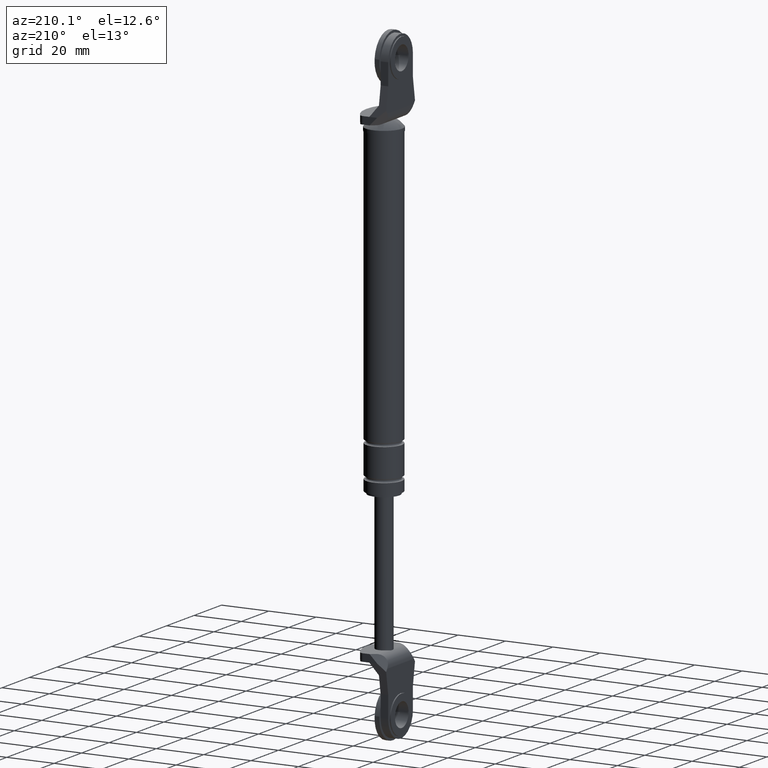
[diagram: clean part render]
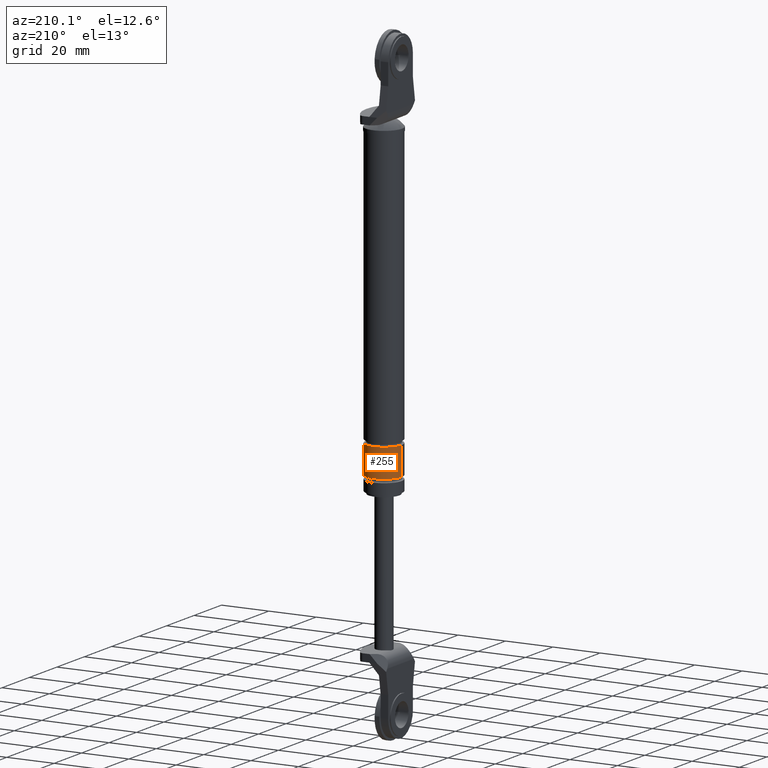
[diagram: same view with one face highlighted and labeled with its STEP entity id]
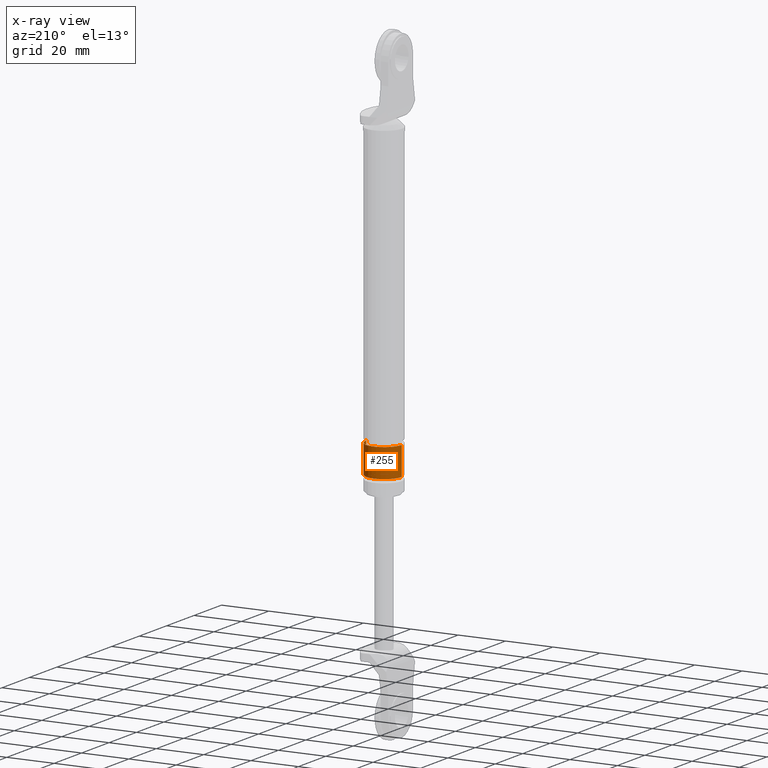
[diagram: x-ray of the same camera — body ghosted, the highlighted face saturated]
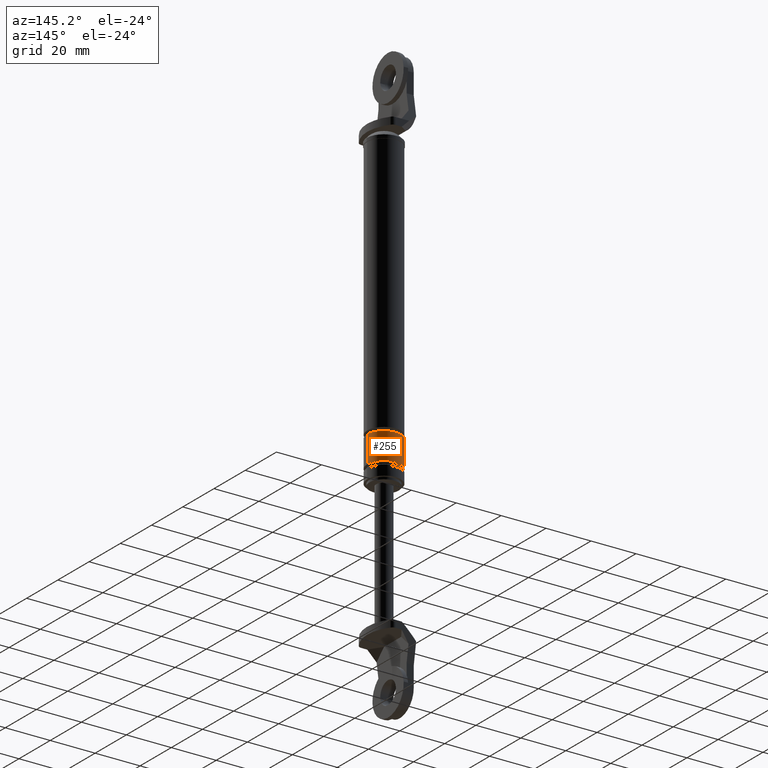
[diagram: same view with one face highlighted and labeled with its STEP entity id]
A machine part, auxiliary view. The second image highlights one B-rep face of the part: STEP entity #255.
The next image is the same camera in x-ray: the body ghosted, the highlighted face saturated — about 0% of this face is hidden behind the body in this view.
A second angle (auxiliary view) of the same face is appended — the face is thin or edge-on in the first view.
In plain terms, the highlighted cylindrical surface (edge-blend (fillet) strip) has radius 7.5 mm, axis along (0, 0, -1).
Its self-contained STEP definition (entity closure, byte-faithful):
#255=ADVANCED_FACE('',(#807),#806,.T.);
#806=CYLINDRICAL_SURFACE('',#1410,7.50000000000E+000);
#807=FACE_OUTER_BOUND('',#1411,.T.);
#1407=CARTESIAN_POINT('',(7.00000000000E+000,0.00000000000E+000,1.02800000000E+003));
#1408=DIRECTION('',(-0.00000000000E+000,-0.00000000000E+000,1.00000000000E+000));
#1409=DIRECTION('',(1.00000000000E+000,-0.00000000000E+000,-0.00000000000E+000));
#1410=AXIS2_PLACEMENT_3D('',#1407,#1408,#1409);
#1411=EDGE_LOOP('',(#1848,#1849,#1850,#1851));
#1848=ORIENTED_EDGE('',*,*,#2096,.T.);
#1849=ORIENTED_EDGE('',*,*,#2126,.T.);
#1850=ORIENTED_EDGE('',*,*,#2109,.F.);
#1851=ORIENTED_EDGE('',*,*,#2127,.F.);
#2096=EDGE_CURVE('',#2870,#2871,#2872,.T.);
#2109=EDGE_CURVE('',#2955,#2954,#2962,.T.);
#2126=EDGE_CURVE('',#2871,#2954,#3068,.T.);
#2127=EDGE_CURVE('',#2870,#2955,#3074,.T.);
#2870=VERTEX_POINT('',#3958);
#2871=VERTEX_POINT('',#3959);
#2872=CIRCLE('',#3963,7.50000000000E+000);
#2954=VERTEX_POINT('',#4018);
#2955=VERTEX_POINT('',#4019);
#2962=CIRCLE('',#4027,7.50000000000E+000);
#3068=(BOUNDED_CURVE() B_SPLINE_CURVE(1,(#4080,#4081),.UNSPECIFIED.,.F.,.F.) B_SPLINE_CURVE_WITH_KNOTS((2,2),(8.33333343261E-002,9.16666667006E-001),.UNSPECIFIED.) CURVE() GEOMETRIC_REPRESENTATION_ITEM() RATIONAL_B_SPLINE_CURVE((1.00000000000E+000,1.00000000000E+000)) REPRESENTATION_ITEM('') );
#3074=(BOUNDED_CURVE() B_SPLINE_CURVE(1,(#4082,#4083),.UNSPECIFIED.,.F.,.F.) B_SPLINE_CURVE_WITH_KNOTS((2,2),(8.33333333333E-002,9.16666666667E-001),.UNSPECIFIED.) CURVE() GEOMETRIC_REPRESENTATION_ITEM() RATIONAL_B_SPLINE_CURVE((7.50000000000E-001,7.50000000000E-001)) REPRESENTATION_ITEM('') );
#3958=CARTESIAN_POINT('',(-5.00000000000E-001,5.92118946467E-016,1.45000000000E+002));
#3959=CARTESIAN_POINT('',(1.45000000000E+001,0.00000000000E+000,1.45000000000E+002));
#3960=CARTESIAN_POINT('',(7.00000000000E+000,0.00000000000E+000,1.45000000000E+002));
#3961=DIRECTION('',(0.00000000000E+000,0.00000000000E+000,1.00000000000E+000));
#3962=DIRECTION('',(1.00000000000E+000,-1.22460635382E-016,0.00000000000E+000));
#3963=AXIS2_PLACEMENT_3D('',#3960,#3961,#3962);
#4018=CARTESIAN_POINT('',(1.45000000000E+001,0.00000000000E+000,1.57000000000E+002));
#4019=CARTESIAN_POINT('',(-5.00000000000E-001,5.92118946467E-016,1.57000000000E+002));
#4024=CARTESIAN_POINT('',(7.00000000000E+000,0.00000000000E+000,1.57000000000E+002));
#4025=DIRECTION('',(0.00000000000E+000,0.00000000000E+000,1.00000000000E+000));
#4026=DIRECTION('',(1.00000000000E+000,-1.22460635382E-016,0.00000000000E+000));
#4027=AXIS2_PLACEMENT_3D('',#4024,#4025,#4026);
#4080=CARTESIAN_POINT('',(1.45000000000E+001,0.00000000000E+000,1.45000000014E+002));
#4081=CARTESIAN_POINT('',(1.45000000000E+001,0.00000000000E+000,1.57000000005E+002));
#4082=CARTESIAN_POINT('',(-5.00000000000E-001,-2.96059473233E-016,1.45000000000E+002));
#4083=CARTESIAN_POINT('',(-5.00000000000E-001,-2.96059473233E-016,1.57000000000E+002));